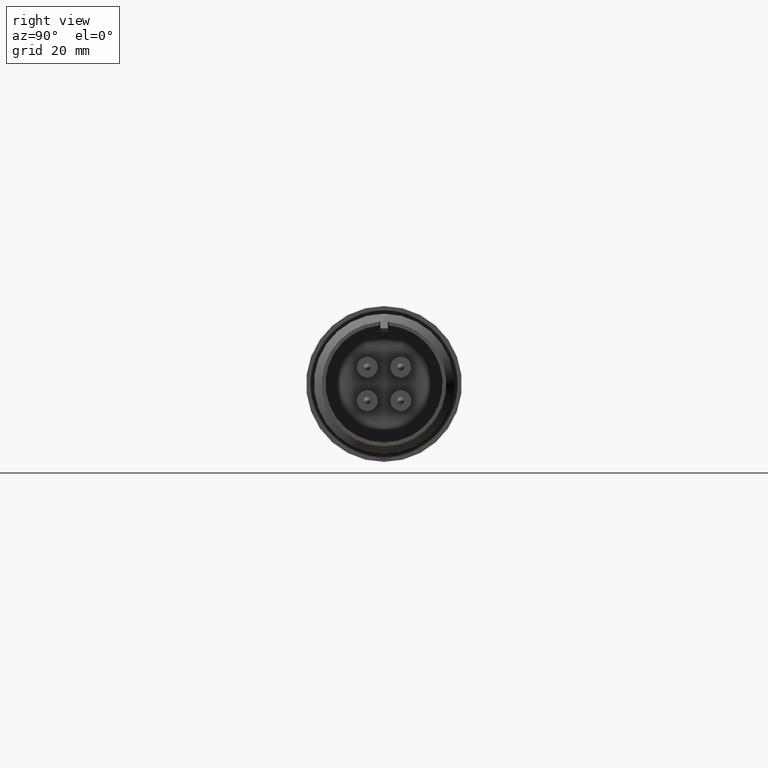
[diagram: clean part render]
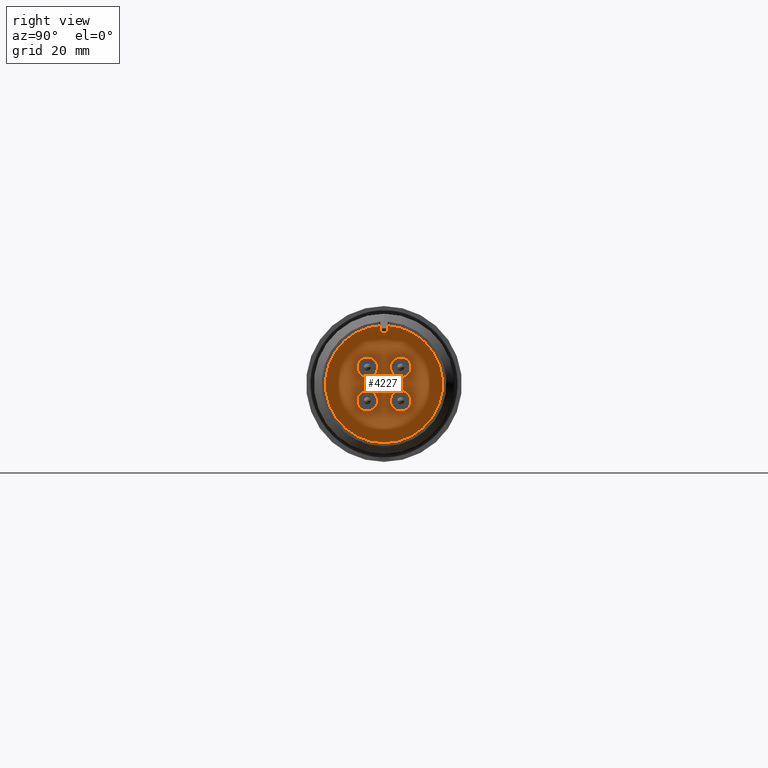
[diagram: same view with one face highlighted and labeled with its STEP entity id]
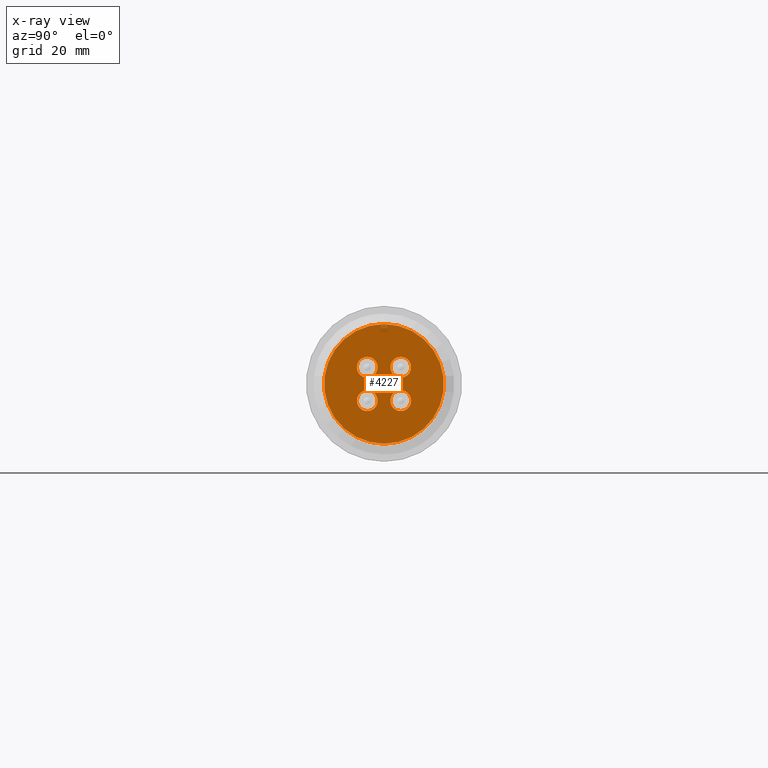
[diagram: x-ray of the same camera — body ghosted, the highlighted face saturated]
A machine part, right view. The second image highlights one B-rep face of the part: STEP entity #4227.
The next image is the same camera in x-ray: the body ghosted, the highlighted face saturated — about 5% of this face is hidden behind the body in this view.
In plain terms, the highlighted planar face has unit normal (-1, -0, -0).
Its self-contained STEP definition (entity closure, byte-faithful):
#55 = AXIS2_PLACEMENT_3D ( 'NONE', #2485, #2440, #2439 ) ;
#59 = AXIS2_PLACEMENT_3D ( 'NONE', #2407, #2406, #2405 ) ;
#296 = CARTESIAN_POINT ( 'NONE',  ( 1.804999999999999900, 0.0000000000000000000, 0.4799999999999999300 ) ) ;
#843 = CIRCLE ( 'NONE', #55, 0.08325000000000003200 ) ;
#851 = CIRCLE ( 'NONE', #59, 0.08325000000000003200 ) ;
#1258 = EDGE_LOOP ( 'NONE', ( #6746, #7285 ) ) ;
#1318 = EDGE_LOOP ( 'NONE', ( #7323, #6956 ) ) ;
#1341 = EDGE_LOOP ( 'NONE', ( #7132, #6918 ) ) ;
#1362 = EDGE_LOOP ( 'NONE', ( #7497, #7307 ) ) ;
#1363 = EDGE_LOOP ( 'NONE', ( #6779, #7509 ) ) ;
#1761 = FACE_OUTER_BOUND ( 'NONE', #1363, .T. ) ;
#1762 = FACE_BOUND ( 'NONE', #1318, .T. ) ;
#1765 = FACE_BOUND ( 'NONE', #1341, .T. ) ;
#1767 = FACE_BOUND ( 'NONE', #1258, .T. ) ;
#1769 = FACE_BOUND ( 'NONE', #1362, .T. ) ;
#2069 = DIRECTION ( 'NONE',  ( 0.0000000000000000000, 0.0000000000000000000, -1.000000000000000000 ) ) ;
#2070 = DIRECTION ( 'NONE',  ( 1.000000000000000000, 2.641901043532173800E-017, -1.132820884859300500E-016 ) ) ;
#2071 = CARTESIAN_POINT ( 'NONE',  ( 1.804999999999999900, -0.1344187068518090400, 0.1342818351389652400 ) ) ;
#2130 = DIRECTION ( 'NONE',  ( 0.0000000000000000000, 0.0000000000000000000, -1.000000000000000000 ) ) ;
#2131 = DIRECTION ( 'NONE',  ( 1.000000000000000000, 2.641901043532173800E-017, -1.132820884859300500E-016 ) ) ;
#2132 = CARTESIAN_POINT ( 'NONE',  ( 1.804999999999999900, -0.1342818351389654700, -0.1344187068518114300 ) ) ;
#2211 = AXIS2_PLACEMENT_3D ( 'NONE', #7983, #7982, #7980 ) ;
#2222 = AXIS2_PLACEMENT_3D ( 'NONE', #7769, #7768, #7767 ) ;
#2250 = AXIS2_PLACEMENT_3D ( 'NONE', #7849, #7846, #7847 ) ;
#2255 = AXIS2_PLACEMENT_3D ( 'NONE', #2071, #2070, #2069 ) ;
#2405 = DIRECTION ( 'NONE',  ( 0.0000000000000000000, 0.0000000000000000000, -1.000000000000000000 ) ) ;
#2406 = DIRECTION ( 'NONE',  ( 1.000000000000000000, 2.641901043532173800E-017, -1.132820884859300500E-016 ) ) ;
#2407 = CARTESIAN_POINT ( 'NONE',  ( 1.804999999999999900, 0.1344187068518066500, -0.1342818351389648300 ) ) ;
#2439 = DIRECTION ( 'NONE',  ( 0.0000000000000000000, 0.0000000000000000000, -1.000000000000000000 ) ) ;
#2440 = DIRECTION ( 'NONE',  ( 1.000000000000000000, 2.641901043532173800E-017, -1.132820884859300500E-016 ) ) ;
#2485 = CARTESIAN_POINT ( 'NONE',  ( 1.804999999999999900, 0.1342818351389688000, 0.1344187068518072300 ) ) ;
#2573 = EDGE_CURVE ( 'NONE', #7632, #6623, #8186, .T. ) ;
#2599 = EDGE_CURVE ( 'NONE', #7301, #7594, #6177, .T. ) ;
#2628 = EDGE_CURVE ( 'NONE', #7259, #6913, #6146, .T. ) ;
#2662 = EDGE_CURVE ( 'NONE', #7367, #7175, #6107, .T. ) ;
#2670 = EDGE_CURVE ( 'NONE', #7469, #6876, #6095, .T. ) ;
#2918 = EDGE_CURVE ( 'NONE', #7594, #7301, #3139, .T. ) ;
#2949 = EDGE_CURVE ( 'NONE', #6623, #7632, #3091, .T. ) ;
#3091 = CIRCLE ( 'NONE', #2211, 0.4799999999999999300 ) ;
#3139 = CIRCLE ( 'NONE', #2222, 0.08325000000000003200 ) ;
#4227 = ADVANCED_FACE ( 'NONE', ( #1769, #1765, #1762, #1767, #1761 ), #4513, .F. ) ;
#4262 = DIRECTION ( 'NONE',  ( 0.0000000000000000000, 0.0000000000000000000, -1.000000000000000000 ) ) ;
#4263 = DIRECTION ( 'NONE',  ( 1.000000000000000000, 2.641901043532173800E-017, -1.132820884859300500E-016 ) ) ;
#4264 = CARTESIAN_POINT ( 'NONE',  ( 1.804999999999999900, -0.1344187068518090400, 0.1342818351389652400 ) ) ;
#4508 = DIRECTION ( 'NONE',  ( 2.641901043532074900E-017, -1.000000000000000000, 0.0000000000000000000 ) ) ;
#4510 = CARTESIAN_POINT ( 'NONE',  ( 1.804999999999999900, 1.056760417412732500E-018, 3.671418758521914800E-019 ) ) ;
#4513 = PLANE ( 'NONE',  #4978 ) ;
#4516 = DIRECTION ( 'NONE',  ( -1.000000000000000000, -2.641901043532074900E-017, -9.178546896300566600E-018 ) ) ;
#4935 = AXIS2_PLACEMENT_3D ( 'NONE', #4264, #4263, #4262 ) ;
#4978 = AXIS2_PLACEMENT_3D ( 'NONE', #4510, #4516, #4508 ) ;
#5226 = EDGE_CURVE ( 'NONE', #7175, #7367, #6042, .T. ) ;
#5373 = EDGE_CURVE ( 'NONE', #6913, #7259, #851, .T. ) ;
#5379 = EDGE_CURVE ( 'NONE', #6876, #7469, #843, .T. ) ;
#5428 = DIRECTION ( 'NONE',  ( 0.0000000000000000000, 0.0000000000000000000, -1.000000000000000000 ) ) ;
#5430 = DIRECTION ( 'NONE',  ( 1.000000000000000000, 2.641901043532173800E-017, -1.132820884859300500E-016 ) ) ;
#5431 = CARTESIAN_POINT ( 'NONE',  ( 1.804999999999999900, 0.1344187068518066500, -0.1342818351389648300 ) ) ;
#5651 = CARTESIAN_POINT ( 'NONE',  ( 1.804999999999999900, 0.1342818351389688000, 0.05116870685180720900 ) ) ;
#5664 = CARTESIAN_POINT ( 'NONE',  ( 1.804999999999999900, 0.1344187068518066500, -0.2175318351389648500 ) ) ;
#5756 = CARTESIAN_POINT ( 'NONE',  ( 1.804999999999999900, -0.1344187068518090400, 0.05103183513896521200 ) ) ;
#5782 = CARTESIAN_POINT ( 'NONE',  ( 1.804999999999999900, 0.1344187068518066800, -0.05103183513896479600 ) ) ;
#5791 = CARTESIAN_POINT ( 'NONE',  ( 1.804999999999999900, -0.1342818351389654400, -0.05116870685181140700 ) ) ;
#5810 = CARTESIAN_POINT ( 'NONE',  ( 1.804999999999999900, -0.1344187068518090100, 0.2175318351389652600 ) ) ;
#5827 = CARTESIAN_POINT ( 'NONE',  ( 1.804999999999999900, 0.1342818351389688200, 0.2176687068518072500 ) ) ;
#5884 = CARTESIAN_POINT ( 'NONE',  ( 1.804999999999999900, -0.1342818351389654700, -0.2176687068518114700 ) ) ;
#5922 = CARTESIAN_POINT ( 'NONE',  ( 1.804999999999999900, 5.878304635907294700E-017, -0.4799999999999999300 ) ) ;
#6042 = CIRCLE ( 'NONE', #4935, 0.08325000000000003200 ) ;
#6095 = CIRCLE ( 'NONE', #2250, 0.08325000000000003200 ) ;
#6107 = CIRCLE ( 'NONE', #2255, 0.08325000000000003200 ) ;
#6146 = CIRCLE ( 'NONE', #6479, 0.08325000000000003200 ) ;
#6177 = CIRCLE ( 'NONE', #6501, 0.08325000000000003200 ) ;
#6262 = DIRECTION ( 'NONE',  ( 0.0000000000000000000, 0.0000000000000000000, 1.000000000000000000 ) ) ;
#6263 = DIRECTION ( 'NONE',  ( 1.000000000000000000, -0.0000000000000000000, -0.0000000000000000000 ) ) ;
#6264 = CARTESIAN_POINT ( 'NONE',  ( 1.804999999999999900, 0.0000000000000000000, 0.0000000000000000000 ) ) ;
#6479 = AXIS2_PLACEMENT_3D ( 'NONE', #5431, #5430, #5428 ) ;
#6501 = AXIS2_PLACEMENT_3D ( 'NONE', #2132, #2131, #2130 ) ;
#6520 = AXIS2_PLACEMENT_3D ( 'NONE', #6264, #6263, #6262 ) ;
#6623 = VERTEX_POINT ( 'NONE', #296 ) ;
#6746 = ORIENTED_EDGE ( 'NONE', *, *, #5373, .F. ) ;
#6779 = ORIENTED_EDGE ( 'NONE', *, *, #2949, .T. ) ;
#6876 = VERTEX_POINT ( 'NONE', #5651 ) ;
#6913 = VERTEX_POINT ( 'NONE', #5664 ) ;
#6918 = ORIENTED_EDGE ( 'NONE', *, *, #2670, .F. ) ;
#6956 = ORIENTED_EDGE ( 'NONE', *, *, #2662, .F. ) ;
#7132 = ORIENTED_EDGE ( 'NONE', *, *, #5379, .F. ) ;
#7175 = VERTEX_POINT ( 'NONE', #5756 ) ;
#7259 = VERTEX_POINT ( 'NONE', #5782 ) ;
#7285 = ORIENTED_EDGE ( 'NONE', *, *, #2628, .F. ) ;
#7301 = VERTEX_POINT ( 'NONE', #5791 ) ;
#7307 = ORIENTED_EDGE ( 'NONE', *, *, #2599, .F. ) ;
#7323 = ORIENTED_EDGE ( 'NONE', *, *, #5226, .F. ) ;
#7367 = VERTEX_POINT ( 'NONE', #5810 ) ;
#7469 = VERTEX_POINT ( 'NONE', #5827 ) ;
#7497 = ORIENTED_EDGE ( 'NONE', *, *, #2918, .F. ) ;
#7509 = ORIENTED_EDGE ( 'NONE', *, *, #2573, .T. ) ;
#7594 = VERTEX_POINT ( 'NONE', #5884 ) ;
#7632 = VERTEX_POINT ( 'NONE', #5922 ) ;
#7767 = DIRECTION ( 'NONE',  ( 0.0000000000000000000, 0.0000000000000000000, -1.000000000000000000 ) ) ;
#7768 = DIRECTION ( 'NONE',  ( 1.000000000000000000, 2.641901043532173800E-017, -1.132820884859300500E-016 ) ) ;
#7769 = CARTESIAN_POINT ( 'NONE',  ( 1.804999999999999900, -0.1342818351389654700, -0.1344187068518114300 ) ) ;
#7846 = DIRECTION ( 'NONE',  ( 1.000000000000000000, 2.641901043532173800E-017, -1.132820884859300500E-016 ) ) ;
#7847 = DIRECTION ( 'NONE',  ( 0.0000000000000000000, 0.0000000000000000000, -1.000000000000000000 ) ) ;
#7849 = CARTESIAN_POINT ( 'NONE',  ( 1.804999999999999900, 0.1342818351389688000, 0.1344187068518072300 ) ) ;
#7980 = DIRECTION ( 'NONE',  ( 0.0000000000000000000, 0.0000000000000000000, 1.000000000000000000 ) ) ;
#7982 = DIRECTION ( 'NONE',  ( 1.000000000000000000, -0.0000000000000000000, -0.0000000000000000000 ) ) ;
#7983 = CARTESIAN_POINT ( 'NONE',  ( 1.804999999999999900, 0.0000000000000000000, 0.0000000000000000000 ) ) ;
#8186 = CIRCLE ( 'NONE', #6520, 0.4799999999999999300 ) ;